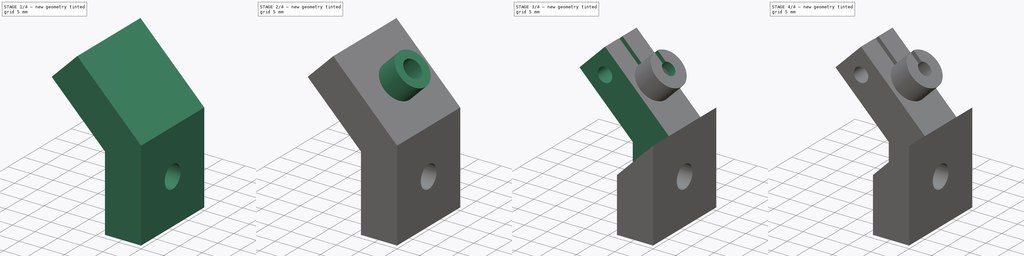
[diagram: build sequence overview — one tinted view per stage of 4, left to right]
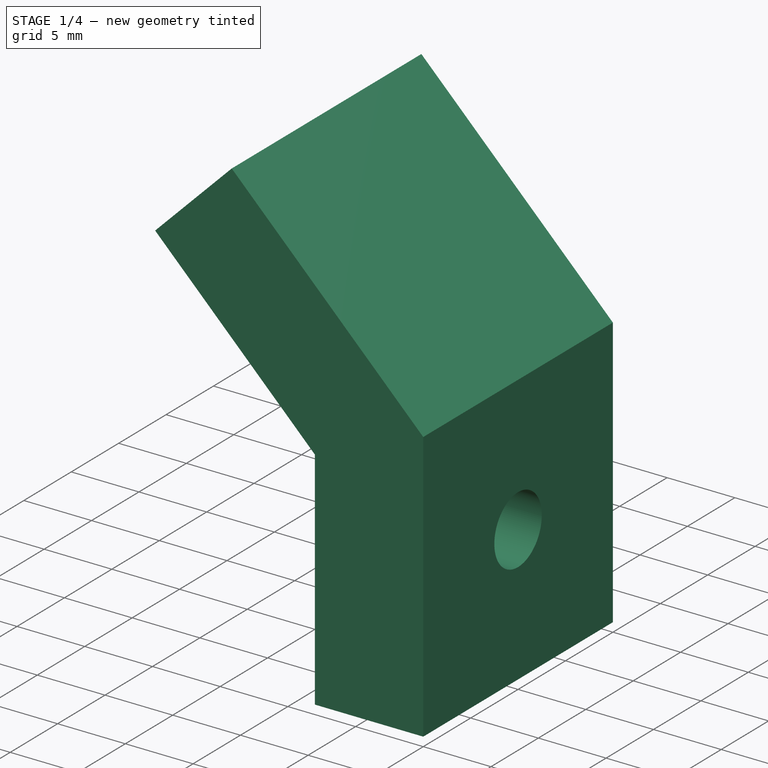
[diagram: stage 1 of 4 — iso view after this stage's code; geometry added in this stage tinted green]
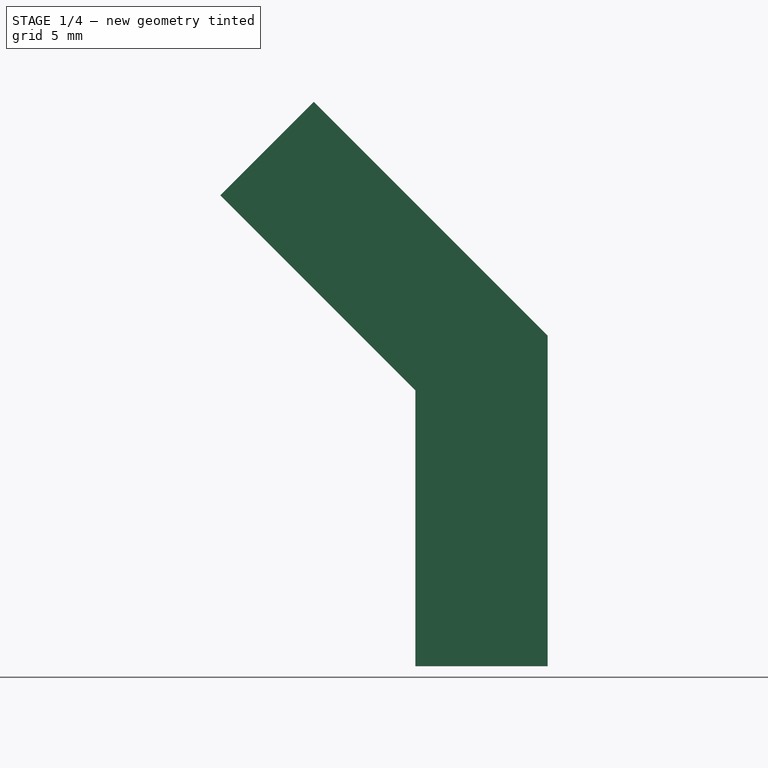
[diagram: stage 1 of 4 — front view after this stage's code; geometry added in this stage tinted green]
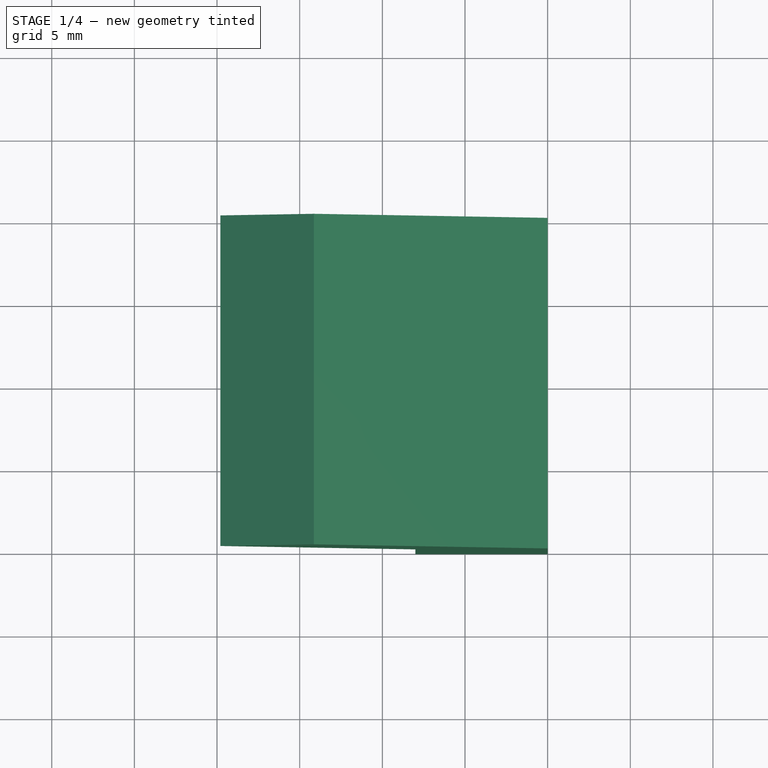
[diagram: stage 1 of 4 — top view after this stage's code; geometry added in this stage tinted green]
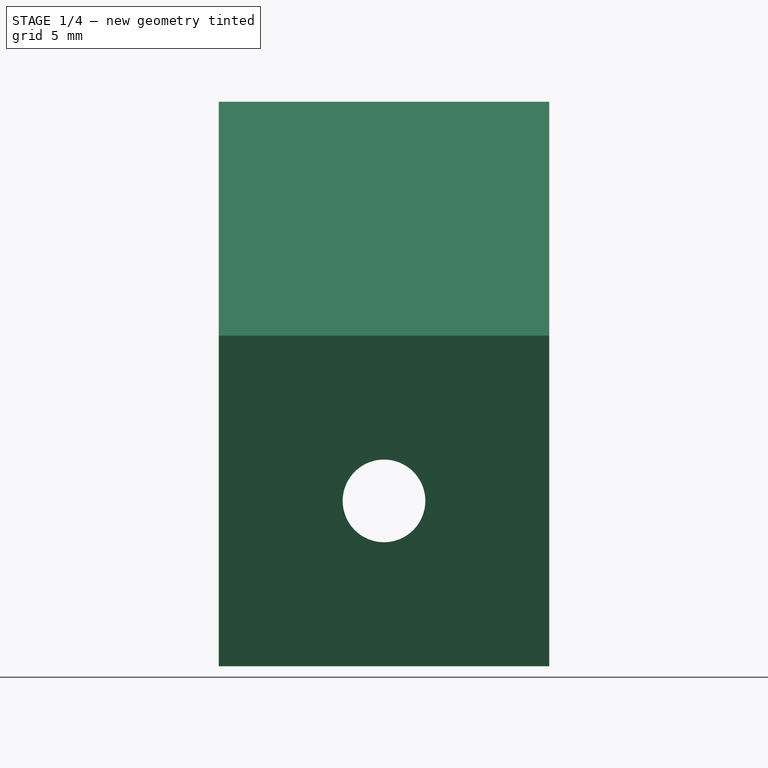
[diagram: stage 1 of 4 — right view after this stage's code; geometry added in this stage tinted green]
FCSTD DOCUMENT  (FreeCAD 0.20R27861 (Git))
Label: reverse boden tube holder
License: All rights reserved
LicenseURL: http://en.wikipedia.org/wiki/All_rights_reserved
objects: Sketcher::SketchObject×9, PartDesign::Pocket×6, PartDesign::Pad×3, PartDesign::Body×1
note: 28 computed .brp shape members not serialized (recipe doc carries the construction recipe); baked Part::Feature solids carry a one-line shape summary decoded from their .brp

FEATURE [Sketcher::SketchObject] Sketch
  FullyConstrained = true
  MapMode = 5
  Placement = pos=(0,0,0) rot=(1,0,0;1.5708rad)
  Support = -> [XZ_Plane]
  sketch-geometry (6):
    g0: LineSegment StartX=0 StartY=0 StartZ=0 EndX=0 EndY=20 EndZ=0
    g1: LineSegment StartX=0 StartY=20 StartZ=0 EndX=-14.1421 EndY=34.1421 EndZ=0
    g2: LineSegment StartX=0 StartY=0 StartZ=0 EndX=-8 EndY=0 EndZ=0
    g3: LineSegment StartX=-14.1421 StartY=34.1421 StartZ=0 EndX=-19.799 EndY=28.4853 EndZ=0
    g4: LineSegment StartX=-19.799 StartY=28.4853 StartZ=0 EndX=-8 EndY=16.6863 EndZ=0
    g5: LineSegment StartX=-8 StartY=0 StartZ=0 EndX=-8 EndY=16.6863 EndZ=0
  constraints (17):
    c: Coincident(g0,g-1)
    c: PointOnObject(g0,g-2)
    c: Coincident(g1,g0)
    c: Coincident(g2,g0)
    c: Horizontal(g2)
    c: DistanceX(g2,g2) = 8
    c: DistanceY(g0,g0) = 20
    c: Angle(g1,g0) = 2.35619
    c: Distance(g1) = 20
    c: Coincident(g3,g1)
    c: Coincident(g4,g3)
    c: Coincident(g5,g2)
    c: Coincident(g5,g4)
    c: Vertical(g5)
    c: Equal(g3,g2)
    c: Parallel(g4,g1)
    c: Perpendicular(g1,g3)
FEATURE [PartDesign::Pad] Pad
  Direction = (0,-1,2e-16)
  Length = 20
  Length2 = 10
  Midplane = true
  Placement = pos=(0,0,0) rot=(1,0,0;1.5708rad)
  Profile = -> Sketch
  ReferenceAxis = -> Sketch [N_Axis]
  Refine = true
  Type = 0
FEATURE [Sketcher::SketchObject] Sketch001
  FullyConstrained = true
  MapMode = 5
  Placement = pos=(0,0,0) rot=(0.707107,0,0.707107;3.14159rad)
  Support = -> [Pad]
  sketch-geometry (1):
    g0: Circle CenterX=10 CenterY=0 CenterZ=0 NormalX=0 NormalY=0 NormalZ=1 AngleXU=0 Radius=2.5
  constraints (3):
    c: PointOnObject(g0,g-1)
    c: Diameter(g0) = 5
    c: DistanceX(g-1,g0) = 10
FEATURE [PartDesign::Pocket] Pocket
  BaseFeature = -> Pad
  Direction = (-1,0,2e-16)
  Length = 5
  Length2 = 5
  Placement = pos=(0,0,0) rot=(1,0,0;1.5708rad)
  Profile = -> Sketch001
  ReferenceAxis = -> Sketch001 [N_Axis]
  Refine = true
  Type = 1
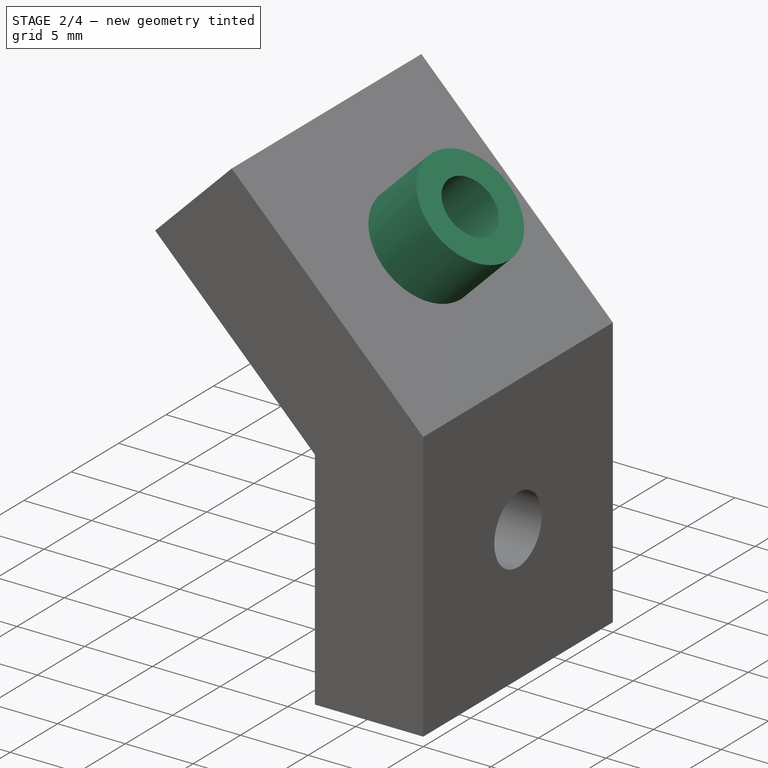
[diagram: stage 2 of 4 — iso view after this stage's code; geometry added in this stage tinted green]
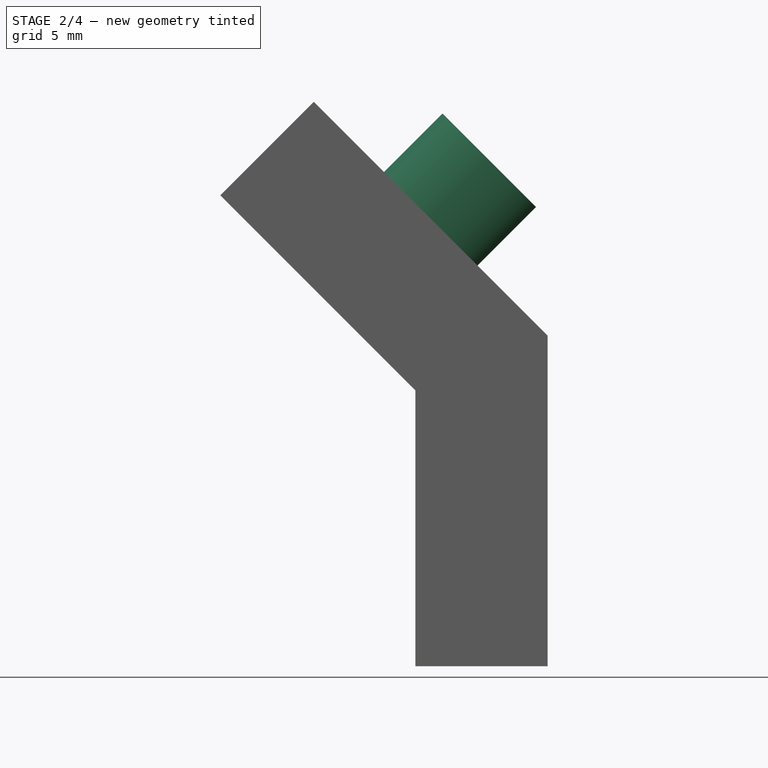
[diagram: stage 2 of 4 — front view after this stage's code; geometry added in this stage tinted green]
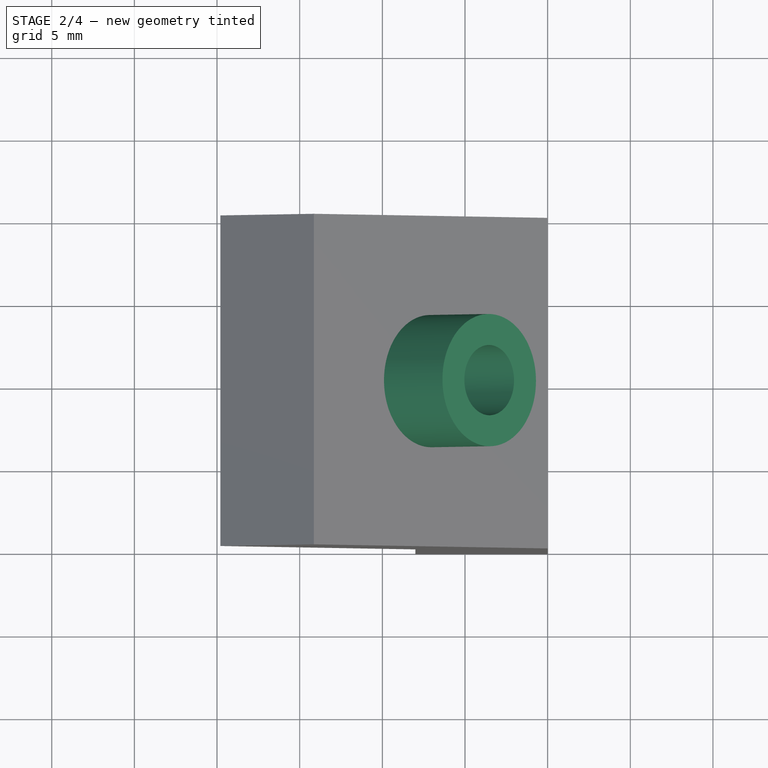
[diagram: stage 2 of 4 — top view after this stage's code; geometry added in this stage tinted green]
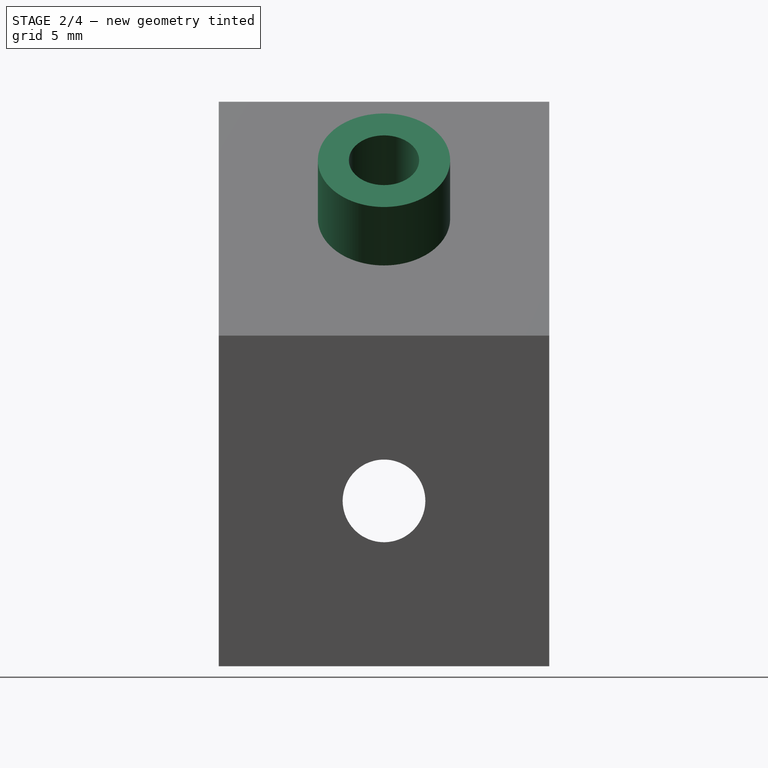
[diagram: stage 2 of 4 — right view after this stage's code; geometry added in this stage tinted green]
FEATURE [Sketcher::SketchObject] Sketch002
  ExternalGeometry = -> [Pocket]
  FullyConstrained = true
  MapMode = 5
  Placement = pos=(10,1.11e-14,10) rot=(0.382683,0,0.92388;3.14159rad)
  Support = -> [Pocket]
  sketch-geometry (3):
    g0: Circle CenterX=24.1421 CenterY=0 CenterZ=0 NormalX=0 NormalY=0 NormalZ=1 AngleXU=0 Radius=2.125
    g1: LineSegment StartX=24.1421 StartY=0 StartZ=0 EndX=14.1421 EndY=10 EndZ=0
    g2: LineSegment StartX=24.1421 StartY=0 StartZ=0 EndX=34.1421 EndY=10 EndZ=0
  constraints (7):
    c: PointOnObject(g0,g-1)
    c: Diameter(g0) = 4.25
    c: Coincident(g1,g0)
    c: Coincident(g1,g-3)
    c: Coincident(g2,g0)
    c: Coincident(g2,g-4)
    c: Equal(g1,g2)
FEATURE [PartDesign::Pocket] Pocket001
  BaseFeature = -> Pocket
  Direction = (-0.707107,-8e-16,-0.707107)
  Length = 5
  Length2 = 5
  Placement = pos=(0,0,0) rot=(1,0,0;1.5708rad)
  Profile = -> Sketch002
  ReferenceAxis = -> Sketch002 [N_Axis]
  Refine = true
  Type = 1
FEATURE [Sketcher::SketchObject] Sketch003
  ExternalGeometry = -> [Pocket001]
  FullyConstrained = true
  MapMode = 5
  Placement = pos=(10,1.55e-14,10) rot=(0.382683,0,0.92388;3.14159rad)
  Support = -> [Pocket001]
  sketch-geometry (2):
    g0: Circle CenterX=24.1421 CenterY=0 CenterZ=0 NormalX=0 NormalY=0 NormalZ=1 AngleXU=0 Radius=4
    g1: Circle CenterX=24.1421 CenterY=0 CenterZ=0 NormalX=0 NormalY=0 NormalZ=1 AngleXU=0 Radius=2.125
  constraints (4):
    c: Coincident(g0,g-3)
    c: Coincident(g1,g0)
    c: Equal(g1,g-3)
    c: Diameter(g0) = 8
FEATURE [PartDesign::Pad] Pad001
  BaseFeature = -> Pocket001
  Direction = (0.707107,1.1e-15,0.707107)
  Length = 5
  Length2 = 10
  Placement = pos=(0,0,0) rot=(1,0,0;1.5708rad)
  Profile = -> Sketch003
  ReferenceAxis = -> Sketch003 [N_Axis]
  Refine = true
  Type = 0
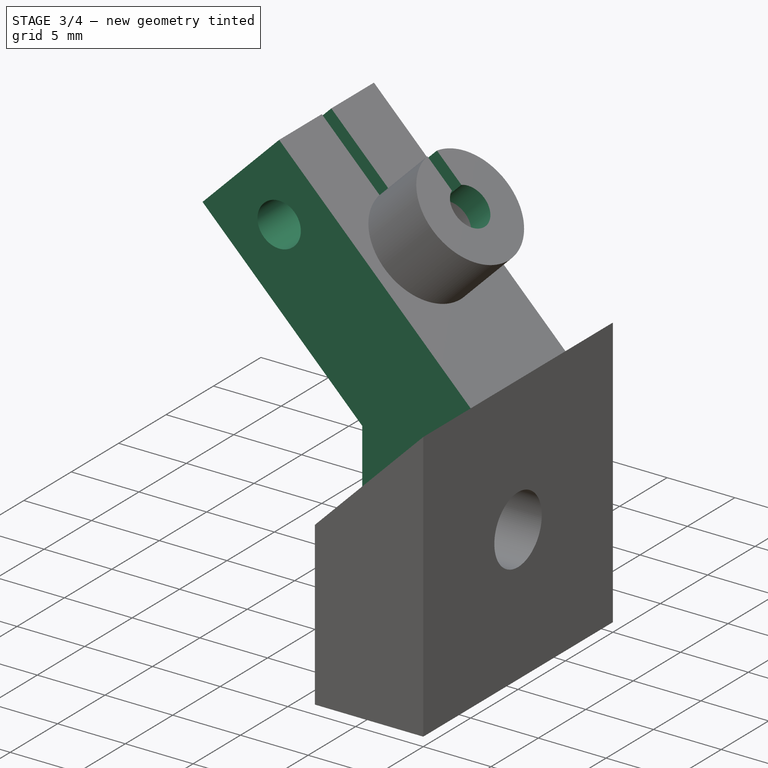
[diagram: stage 3 of 4 — iso view after this stage's code; geometry added in this stage tinted green]
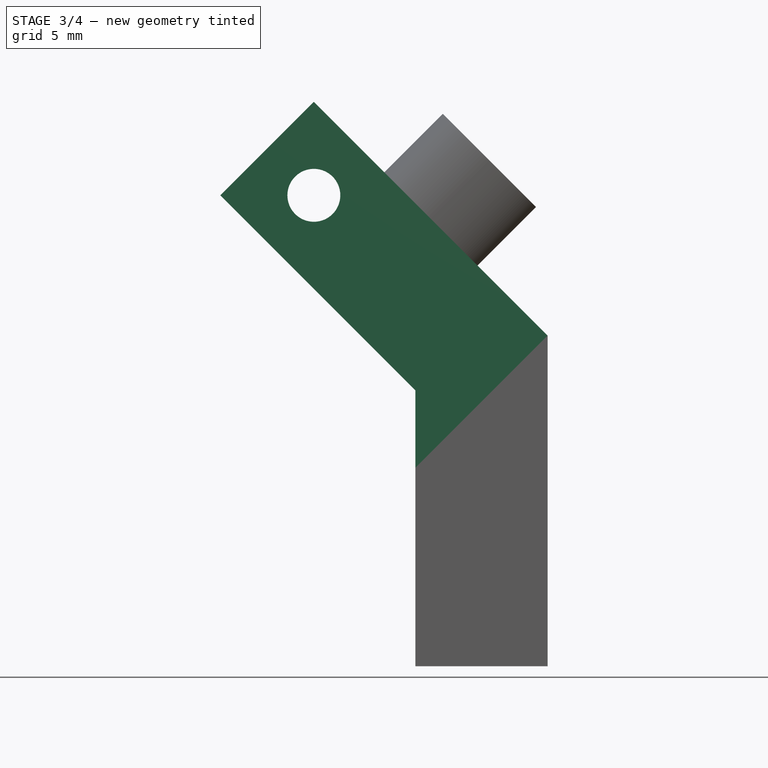
[diagram: stage 3 of 4 — front view after this stage's code; geometry added in this stage tinted green]
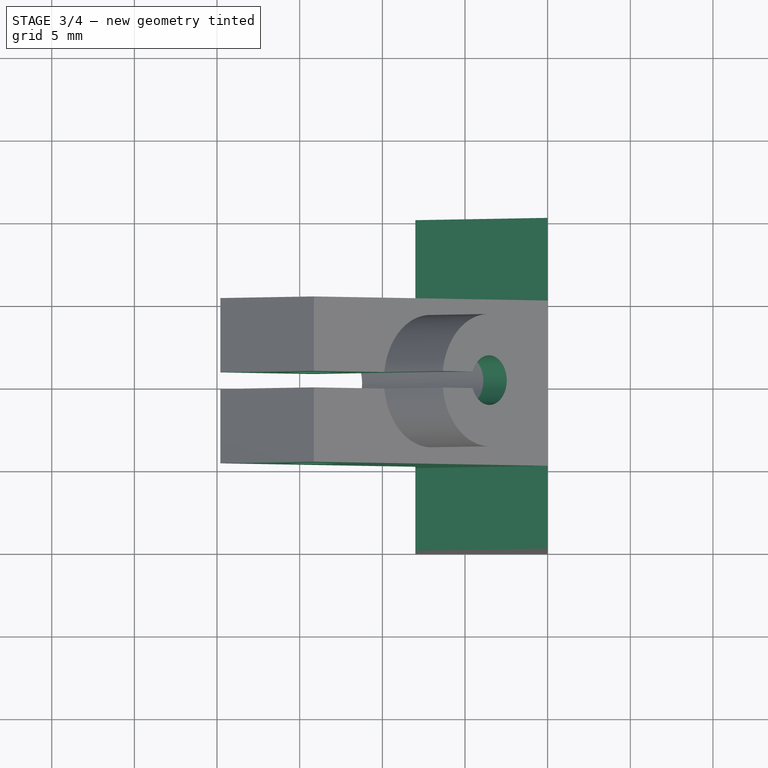
[diagram: stage 3 of 4 — top view after this stage's code; geometry added in this stage tinted green]
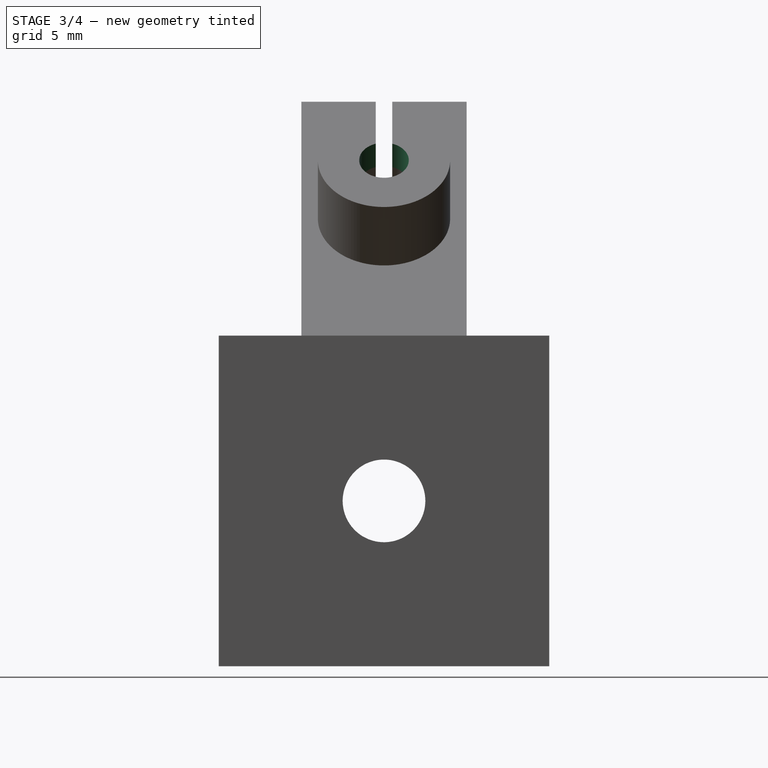
[diagram: stage 3 of 4 — right view after this stage's code; geometry added in this stage tinted green]
FEATURE [Sketcher::SketchObject] Sketch004
  ExternalGeometry = -> [Pad001]
  FullyConstrained = true
  MapMode = 5
  Placement = pos=(13.5355,2.72e-14,13.5355) rot=(0.382683,0,0.92388;3.14159rad)
  Support = -> [Pad001]
  sketch-geometry (2):
    g0: Circle CenterX=24.1421 CenterY=0 CenterZ=0 NormalX=0 NormalY=0 NormalZ=1 AngleXU=0 Radius=1.5
    g1: Circle CenterX=24.1421 CenterY=0 CenterZ=0 NormalX=0 NormalY=0 NormalZ=1 AngleXU=0 Radius=2.125
  constraints (4):
    c: Coincident(g0,g-3)
    c: Coincident(g1,g0)
    c: Equal(g1,g-3)
    c: Diameter(g0) = 3
FEATURE [PartDesign::Pad] Pad002
  BaseFeature = -> Pad001
  Direction = (0.707107,1.4e-15,0.707107)
  Length = 2
  Length2 = 10
  Placement = pos=(0,0,0) rot=(1,0,0;1.5708rad)
  Profile = -> Sketch004
  ReferenceAxis = -> Sketch004 [N_Axis]
  Refine = true
  Reversed = true
  Type = 0
FEATURE [Sketcher::SketchObject] Sketch005
  ExternalGeometry = -> [Pad002]
  FullyConstrained = true
  MapMode = 5
  Placement = pos=(10,2.44e-14,10) rot=(0.382683,0,0.92388;3.14159rad)
  Support = -> [Pad002]
  sketch-geometry (12):
    g0: LineSegment StartX=14.1421 StartY=10 StartZ=0 EndX=34.1421 EndY=10 EndZ=0
    g1: LineSegment StartX=14.1421 StartY=-10 StartZ=0 EndX=34.1421 EndY=-10 EndZ=0
    g2: LineSegment StartX=34.1421 StartY=5 StartZ=0 EndX=34.1421 EndY=10 EndZ=0
    g3: LineSegment StartX=34.1421 StartY=-5 StartZ=0 EndX=34.1421 EndY=-10 EndZ=0
    g4: LineSegment StartX=25 StartY=0.5 StartZ=0 EndX=34.1421 EndY=0.5 EndZ=0
    g5: LineSegment StartX=34.1421 StartY=0.5 StartZ=0 EndX=34.1421 EndY=-0.5 EndZ=0
    g6: LineSegment StartX=34.1421 StartY=-0.5 StartZ=0 EndX=25 EndY=-0.5 EndZ=0
    g7: LineSegment StartX=25 StartY=-0.5 StartZ=0 EndX=25 EndY=0.5 EndZ=0
    g8: LineSegment StartX=14.1421 StartY=5 StartZ=0 EndX=34.1421 EndY=5 EndZ=0
    g9: LineSegment StartX=14.1421 StartY=5 StartZ=0 EndX=14.1421 EndY=10 EndZ=0
    g10: LineSegment StartX=14.1421 StartY=-10 StartZ=0 EndX=14.1421 EndY=-5 EndZ=0
    g11: LineSegment StartX=14.1421 StartY=-5 StartZ=0 EndX=34.1421 EndY=-5 EndZ=0
  constraints (30):
    c: Coincident(g0,g-3)
    c: Coincident(g0,g-4)
    c: PointOnObject(g2,g-4)
    c: Coincident(g1,g-3)
    c: Coincident(g1,g-4)
    c: DistanceY(g3,g2) = 10
    c: Symmetric(g3,g2,g-1)
    c: Coincident(g2,g0)
    c: Coincident(g3,g1)
    c: Coincident(g4,g5)
    c: Coincident(g5,g6)
    c: Coincident(g6,g7)
    c: Coincident(g7,g4)
    c: Horizontal(g4)
    c: Horizontal(g6)
    c: Vertical(g7)
    c: Symmetric(g5,g4,g-1)
    c: DistanceY(g5,g5) = 1
    c: DistanceX(g-1,g6) = 25
    c: PointOnObject(g4,g-4)
    c: PointOnObject(g8,g-3)
    c: Coincident(g8,g2)
    c: Horizontal(g8)
    c: Coincident(g9,g8)
    c: Coincident(g9,g0)
    c: Coincident(g10,g1)
    c: PointOnObject(g10,g-3)
    c: Coincident(g11,g10)
    c: Coincident(g11,g3)
    c: Horizontal(g11)
FEATURE [PartDesign::Pocket] Pocket002
  BaseFeature = -> Pad002
  Direction = (-0.707107,-1.7e-15,-0.707107)
  Length = 5
  Length2 = 5
  Midplane = true
  Placement = pos=(0,0,0) rot=(1,0,0;1.5708rad)
  Profile = -> Sketch005
  ReferenceAxis = -> Sketch005 [N_Axis]
  Refine = true
  Type = 1
FEATURE [Sketcher::SketchObject] Sketch006
  ExternalGeometry = -> [Pocket002]
  FullyConstrained = true
  MapMode = 5
  Placement = pos=(1.22e-14,-5,2.2e-15) rot=(1,0,0;1.5708rad)
  Support = -> [Pocket002]
  sketch-geometry (4):
    g0: Circle CenterX=-14.1421 CenterY=28.4853 CenterZ=0 NormalX=0 NormalY=0 NormalZ=1 AngleXU=0 Radius=1.6
    g1: LineSegment StartX=-14.1421 StartY=28.4853 StartZ=0 EndX=-19.799 EndY=28.4853 EndZ=0
    g2: LineSegment StartX=-14.1421 StartY=28.4853 StartZ=0 EndX=-14.1421 EndY=34.1421 EndZ=0
    g3: LineSegment StartX=-14.1421 StartY=28.4853 StartZ=0 EndX=-16.9706 EndY=31.3137 EndZ=0
  constraints (10):
    c: Coincident(g1,g0)
    c: Coincident(g1,g-3)
    c: Coincident(g2,g0)
    c: Coincident(g2,g-3)
    c: Equal(g1,g2)
    c: Coincident(g3,g0)
    c: PointOnObject(g3,g-3)
    c: Distance(g3) = 4
    c: Perpendicular(g-3,g3)
    c: Diameter(g0) = 3.2
FEATURE [PartDesign::Pocket] Pocket003
  BaseFeature = -> Pocket002
  Direction = (-2.4e-15,1,-4e-16)
  Length = 5
  Length2 = 5
  Placement = pos=(0,0,0) rot=(1,0,0;1.5708rad)
  Profile = -> Sketch006
  ReferenceAxis = -> Sketch006 [N_Axis]
  Refine = true
  Type = 1
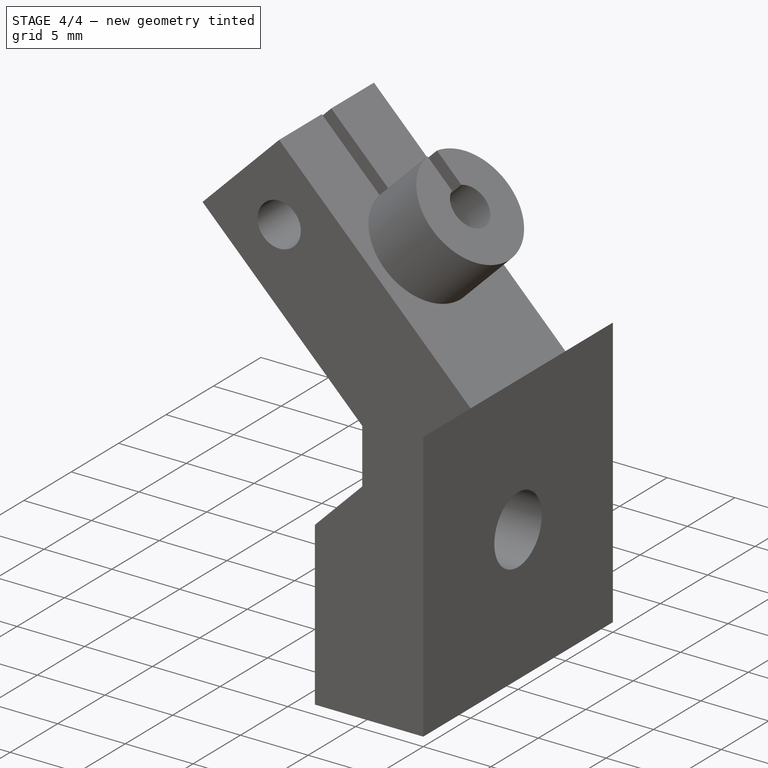
[diagram: stage 4 of 4 — iso view after this stage's code; geometry added in this stage tinted green]
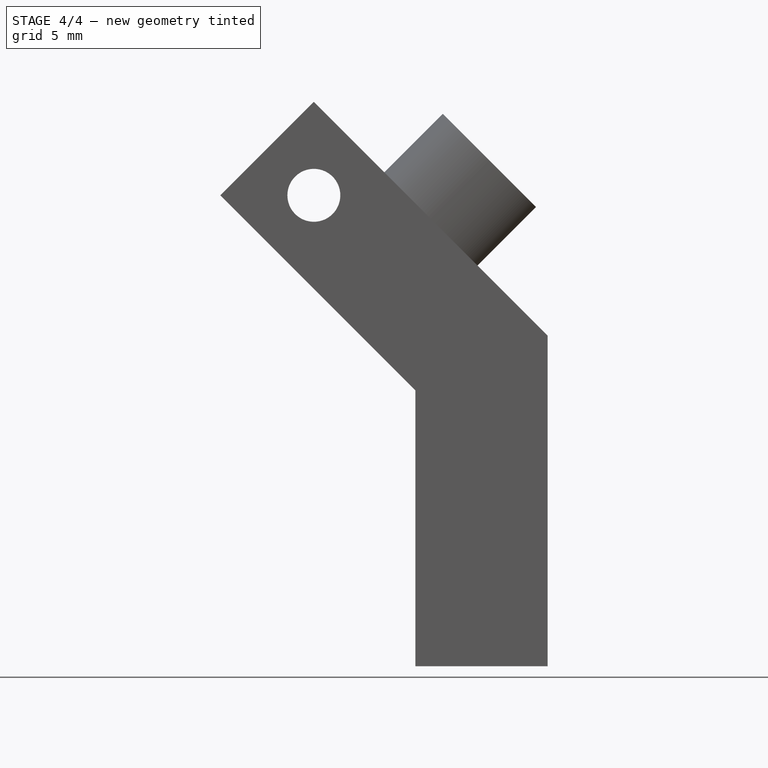
[diagram: stage 4 of 4 — front view after this stage's code; geometry added in this stage tinted green]
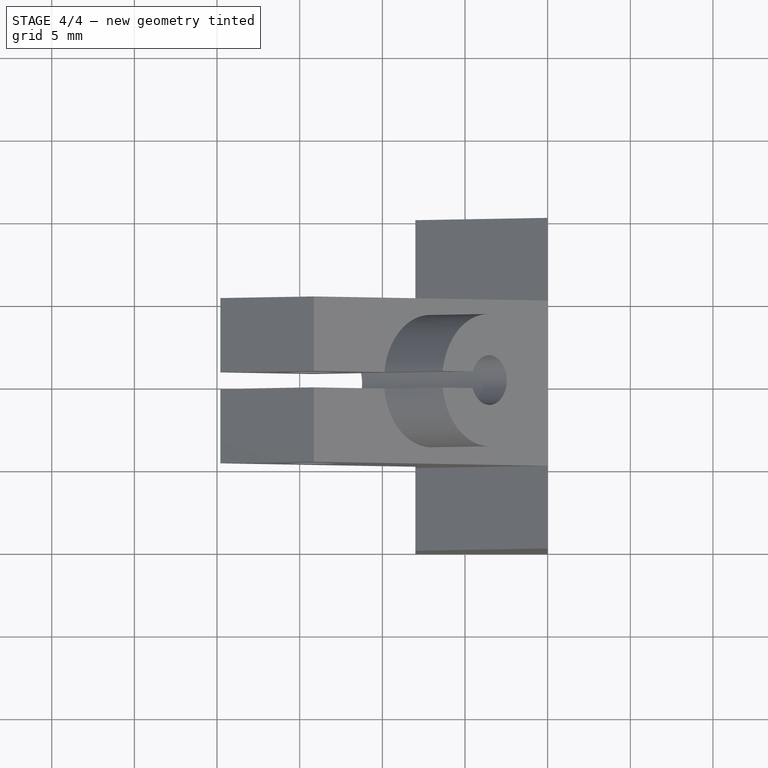
[diagram: stage 4 of 4 — top view after this stage's code; geometry added in this stage tinted green]
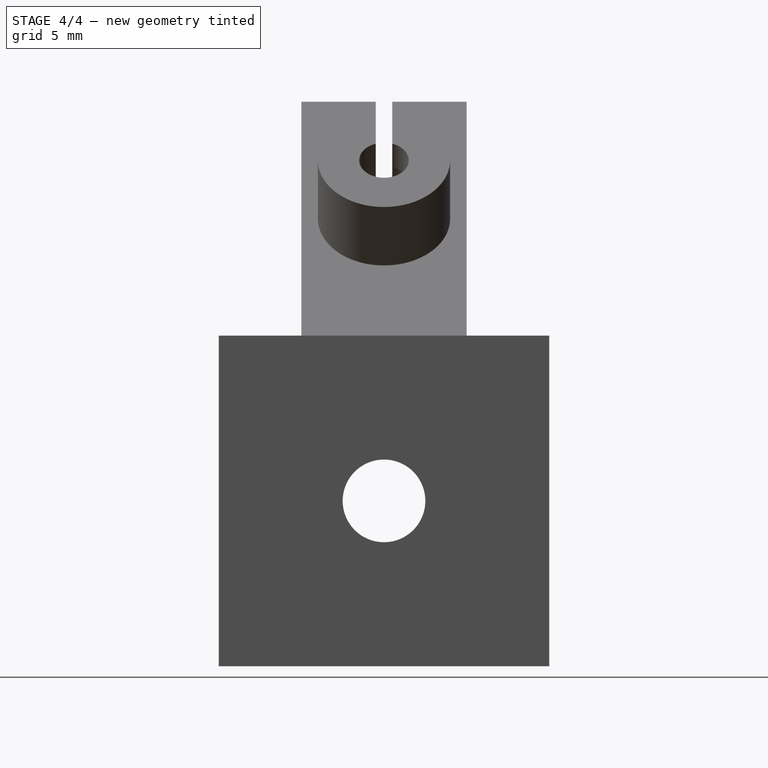
[diagram: stage 4 of 4 — right view after this stage's code; geometry added in this stage tinted green]
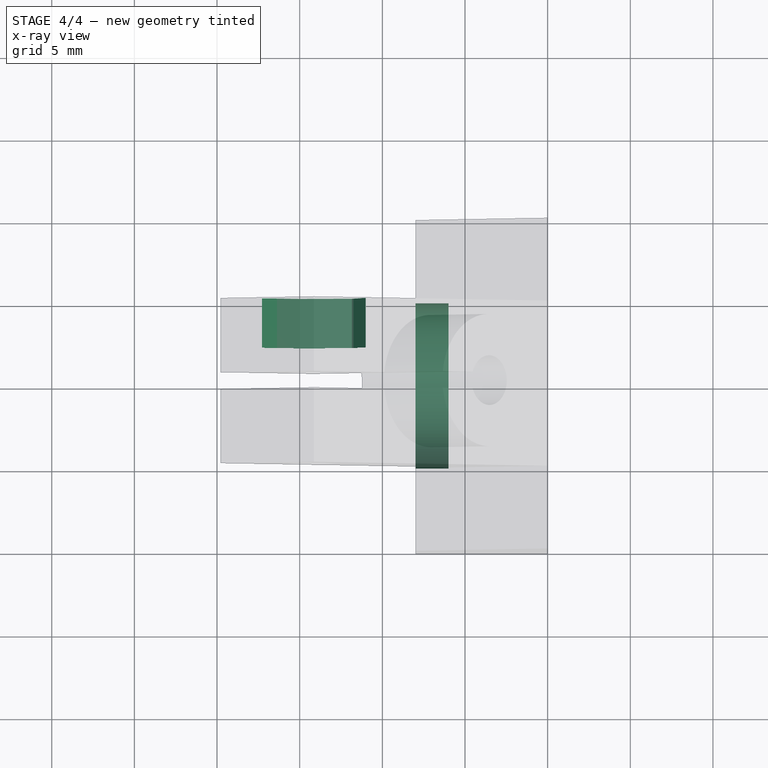
[diagram: stage 4 of 4 — x-ray composite at the top view; earlier geometry ghosted, this stage's added geometry solid]
FEATURE [Sketcher::SketchObject] Sketch007
  ExternalGeometry = -> [Pocket003]
  FullyConstrained = true
  MapMode = 5
  Placement = pos=(-1.22e-14,5,-4.4e-15) rot=(-1,0,0;1.5708rad)
  Support = -> [Pocket003]
  sketch-geometry (7):
    g0: LineSegment StartX=-11.0029 StartY=-29.3264 StartZ=0 EndX=-11.844 EndY=-26.1872 EndZ=0
    g1: LineSegment StartX=-11.844 StartY=-26.1872 StartZ=0 EndX=-14.9833 EndY=-25.346 EndZ=0
    g2: LineSegment StartX=-14.9833 StartY=-25.346 StartZ=0 EndX=-17.2814 EndY=-27.6441 EndZ=0
    g3: LineSegment StartX=-17.2814 StartY=-27.6441 StartZ=0 EndX=-16.4402 EndY=-30.7834 EndZ=0
    g4: LineSegment StartX=-16.4402 StartY=-30.7834 StartZ=0 EndX=-13.301 EndY=-31.6245 EndZ=0
    g5: LineSegment StartX=-13.301 StartY=-31.6245 StartZ=0 EndX=-11.0029 EndY=-29.3264 EndZ=0
    g6: Circle CenterX=-14.1421 CenterY=-28.4853 CenterZ=0 NormalX=0 NormalY=0 NormalZ=1 AngleXU=0 Radius=3.25
  constraints (16):
    c: Coincident(g0,g1)
    c: Coincident(g1,g2)
    c: Coincident(g2,g3)
    c: Coincident(g3,g4)
    c: Coincident(g4,g5)
    c: Coincident(g5,g0)
    c: Equal(g0, g1-g5) x5
    c: PointOnObject(g0,g6)
    c: PointOnObject(g1,g6)
    c: PointOnObject(g2,g6)
    c: PointOnObject(g3,g6)
    c: PointOnObject(g4,g6)
    c: PointOnObject(g5,g6)
    c: Coincident(g6,g-3)
    c: Diameter(g6) = 6.5
    c: Parallel(g5,g-4)
FEATURE [PartDesign::Pocket] Pocket004
  BaseFeature = -> Pocket003
  Direction = (2.4e-15,-1,7e-16)
  Length = 3
  Length2 = 5
  Placement = pos=(0,0,0) rot=(1,0,0;1.5708rad)
  Profile = -> Sketch007
  ReferenceAxis = -> Sketch007 [N_Axis]
  Refine = true
  Type = 0
FEATURE [Sketcher::SketchObject] Sketch008
  ExternalGeometry = -> [Pocket004]
  FullyConstrained = true
  MapMode = 5
  Placement = pos=(-8,0,0) rot=(0.707107,0,-0.707107;3.14159rad)
  Support = -> [Pocket004]
  sketch-geometry (1):
    g0: Circle CenterX=-10 CenterY=0 CenterZ=0 NormalX=0 NormalY=0 NormalZ=1 AngleXU=0 Radius=5
  constraints (2):
    c: Coincident(g0,g-3)
    c: Diameter(g0) = 10
FEATURE [PartDesign::Pocket] Pocket005
  BaseFeature = -> Pocket004
  Direction = (1,0,2e-16)
  Length = 2
  Length2 = 5
  Placement = pos=(0,0,0) rot=(1,0,0;1.5708rad)
  Profile = -> Sketch008
  ReferenceAxis = -> Sketch008 [N_Axis]
  Refine = true
  Type = 0
FEATURE [PartDesign::Body] Body
  Group = -> [Sketch,Pad,Sketch001,Pocket,Sketch002,Pocket001,Sketch003,Pad001,Sketch004,Pad002,Sketch005,Pocket002,Sketch006,Pocket003,Sketch007,Pocket004,Sketch008,Pocket005]
  Origin = -> Origin
  Tip = -> Pocket005
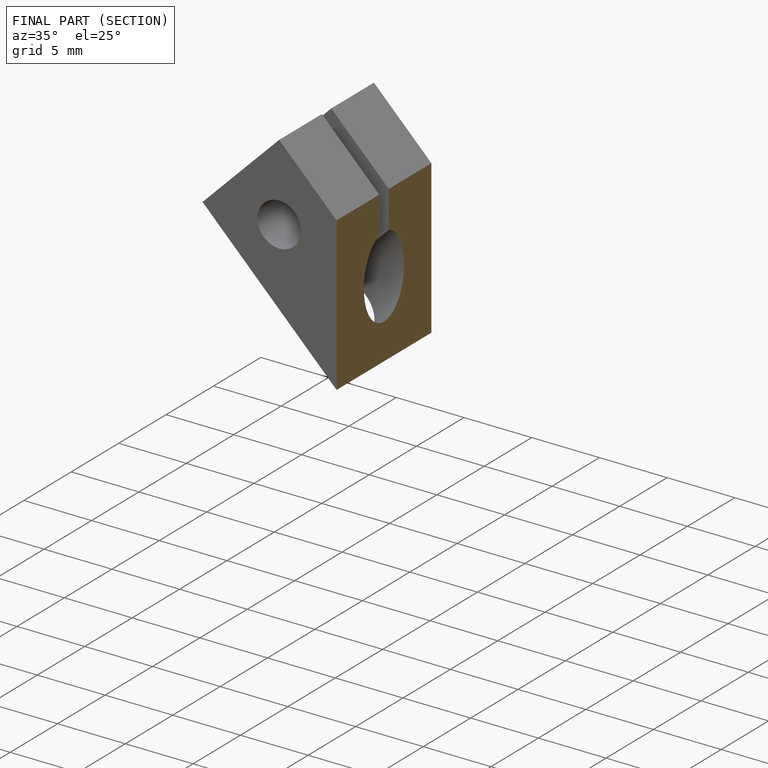
[diagram: finished part — half-section view (interior)]
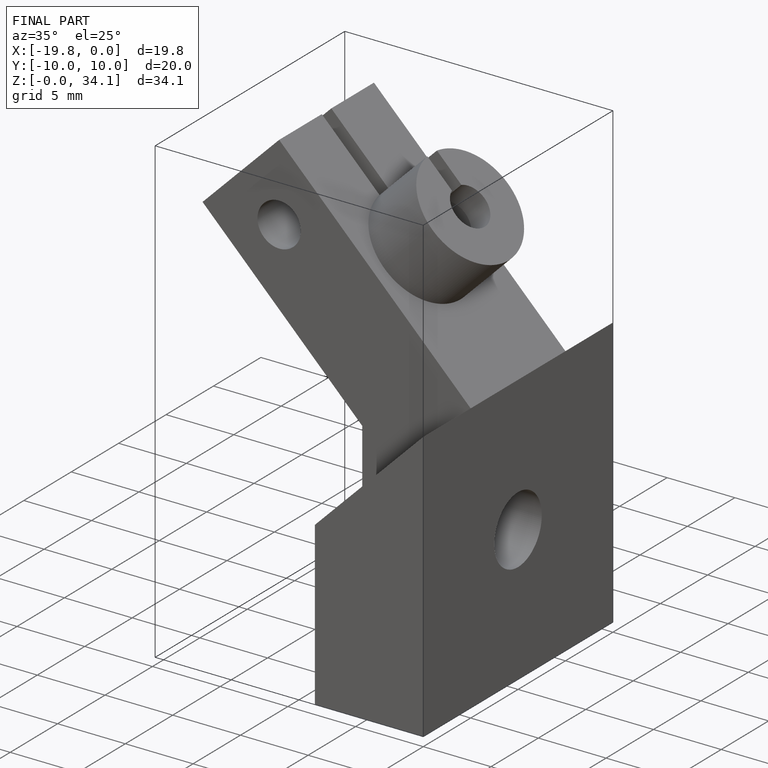
[diagram: finished part — iso view with bounding-box wireframe]
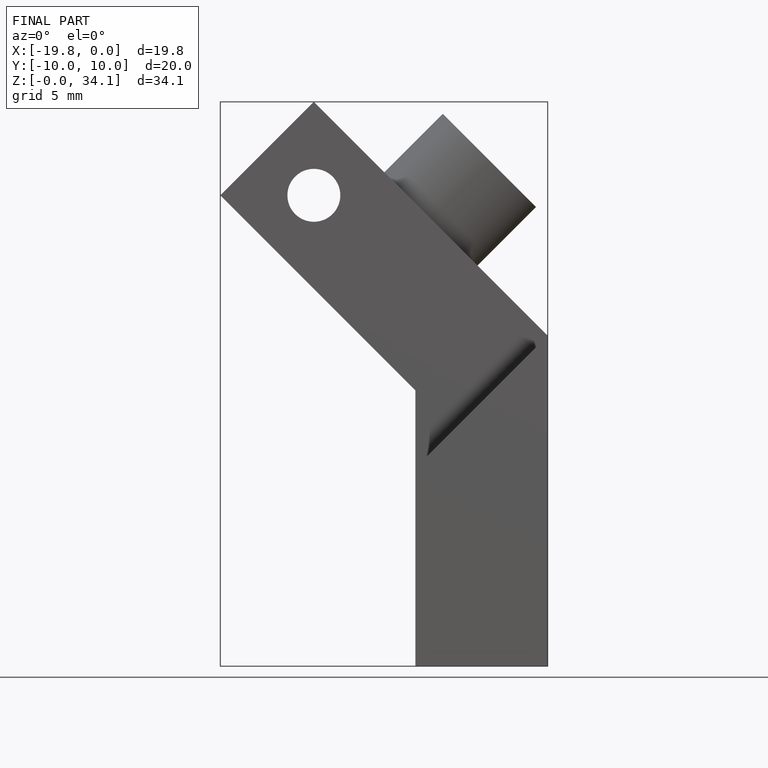
[diagram: finished part — front view with bounding-box wireframe]
